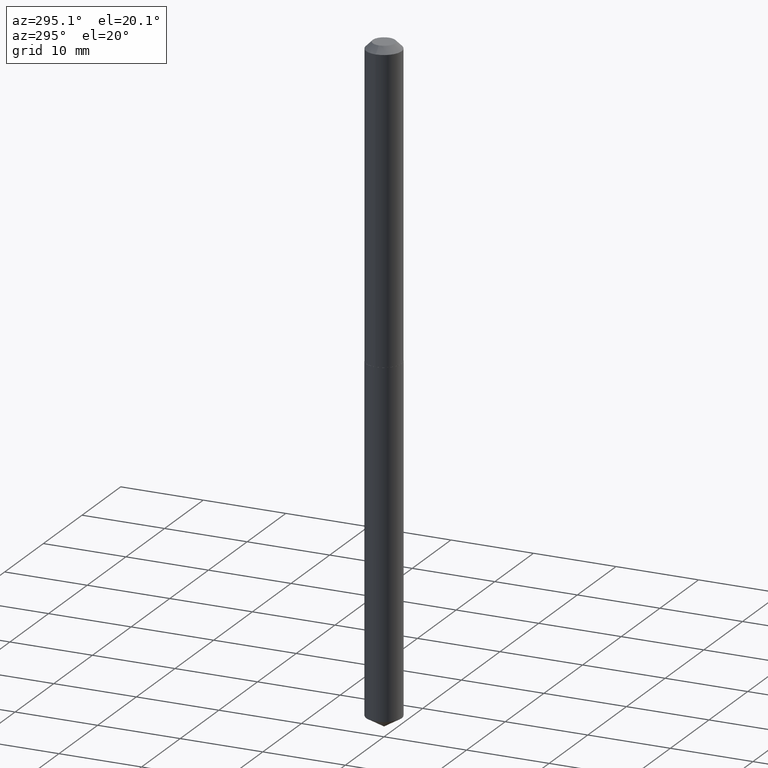
[diagram: clean part render]
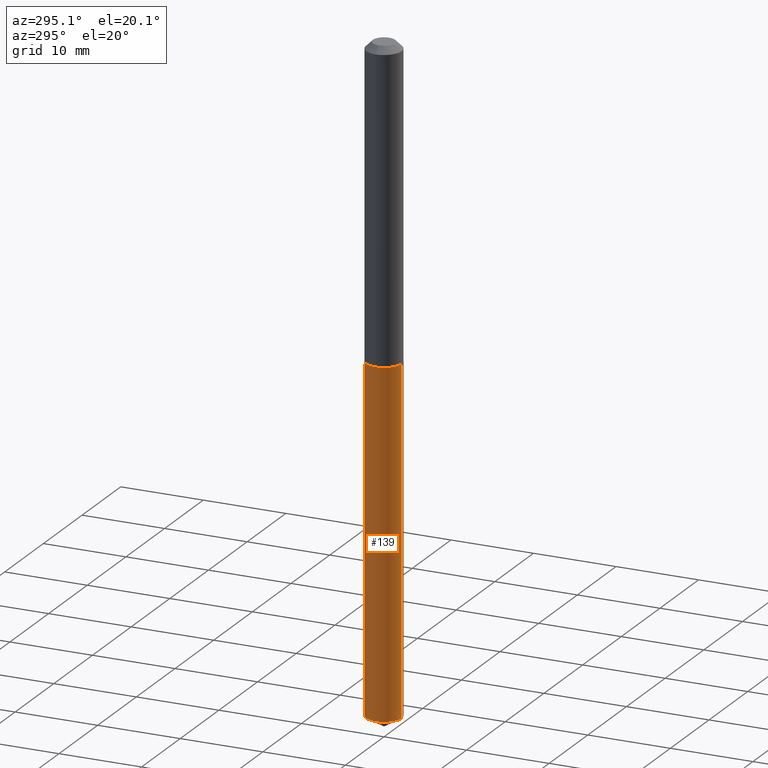
[diagram: same view with one face highlighted and labeled with its STEP entity id]
A machine part, auxiliary view. The second image highlights one B-rep face of the part: STEP entity #139.
In plain terms, the highlighted cylindrical surface (edge-blend (fillet) strip) has radius 2.1501 mm, axis along (-0, 0, 1).
Its self-contained STEP definition (entity closure, byte-faithful):
#8 = VERTEX_POINT ( 'NONE', #281 ) ;
#11 = ORIENTED_EDGE ( 'NONE', *, *, #216, .F. ) ;
#20 = CARTESIAN_POINT ( 'NONE',  ( 6.014744258210007567E-16, 0.08464999999998920610, -3.098737148599317592 ) ) ;
#28 = VECTOR ( 'NONE', #289, 39.37007874015748143 ) ;
#44 = DIRECTION ( 'NONE',  ( -2.445439580246594342E-29, 3.491523192050575097E-15, 1.000000000000000000 ) ) ;
#45 = DIRECTION ( 'NONE',  ( -2.445439580246594342E-29, 3.491523192050574702E-15, 1.000000000000000000 ) ) ;
#46 = FACE_OUTER_BOUND ( 'NONE', #322, .T. ) ;
#47 = DIRECTION ( 'NONE',  ( -6.982962677686265922E-15, -1.000000000000000000, 3.227227399485248397E-15 ) ) ;
#54 = CARTESIAN_POINT ( 'NONE',  ( 6.014744258210009539E-16, 0.08464999999999488212, -1.468500000000000361 ) ) ;
#70 = DIRECTION ( 'NONE',  ( -6.982962677686265922E-15, -1.000000000000000000, 3.227227399485248397E-15 ) ) ;
#71 = CARTESIAN_POINT ( 'NONE',  ( 7.577817390255991065E-29, -1.081925115896807273E-14, -3.098737148599316704 ) ) ;
#74 = AXIS2_PLACEMENT_3D ( 'NONE', #71, #194, #229 ) ;
#75 = CARTESIAN_POINT ( 'NONE',  ( 6.014744258209607220E-16, 0.08464999999999488212, -1.468500000000000361 ) ) ;
#90 = VERTEX_POINT ( 'NONE', #252 ) ;
#107 = AXIS2_PLACEMENT_3D ( 'NONE', #384, #317, #47 ) ;
#116 = EDGE_CURVE ( 'NONE', #8, #90, #195, .T. ) ;
#139 = ADVANCED_FACE ( 'NONE', ( #46 ), #251, .T. ) ;
#150 = EDGE_CURVE ( 'NONE', #193, #292, #225, .T. ) ;
#187 = ORIENTED_EDGE ( 'NONE', *, *, #116, .T. ) ;
#193 = VERTEX_POINT ( 'NONE', #20 ) ;
#194 = DIRECTION ( 'NONE',  ( -2.445439580246594342E-29, 3.491523192050575097E-15, 1.000000000000000000 ) ) ;
#195 = LINE ( 'NONE', #379, #244 ) ;
#200 = AXIS2_PLACEMENT_3D ( 'NONE', #348, #44, #70 ) ;
#210 = ORIENTED_EDGE ( 'NONE', *, *, #150, .F. ) ;
#216 = EDGE_CURVE ( 'NONE', #292, #90, #319, .T. ) ;
#224 = EDGE_CURVE ( 'NONE', #193, #8, #228, .T. ) ;
#225 = LINE ( 'NONE', #75, #28 ) ;
#228 = CIRCLE ( 'NONE', #74, 0.08465000000000001690 ) ;
#229 = DIRECTION ( 'NONE',  ( -6.982962677686265922E-15, -1.000000000000000000, 6.454454798970496795E-15 ) ) ;
#244 = VECTOR ( 'NONE', #45, 39.37007874015748143 ) ;
#251 = CYLINDRICAL_SURFACE ( 'NONE', #107, 0.08465000000000001690 ) ;
#252 = CARTESIAN_POINT ( 'NONE',  ( -5.911077906661066131E-16, -0.08465000000000513780, -1.468499999999999917 ) ) ;
#281 = CARTESIAN_POINT ( 'NONE',  ( -5.911077906660666770E-16, -0.08465000000001084157, -3.098737148599316260 ) ) ;
#289 = DIRECTION ( 'NONE',  ( -2.445439580246594342E-29, 3.491523192050574702E-15, 1.000000000000000000 ) ) ;
#292 = VERTEX_POINT ( 'NONE', #54 ) ;
#299 = ORIENTED_EDGE ( 'NONE', *, *, #224, .T. ) ;
#317 = DIRECTION ( 'NONE',  ( -2.445439580246594342E-29, 3.491523192050575097E-15, 1.000000000000000000 ) ) ;
#319 = CIRCLE ( 'NONE', #200, 0.08465000000000001690 ) ;
#322 = EDGE_LOOP ( 'NONE', ( #210, #299, #187, #11 ) ) ;
#348 = CARTESIAN_POINT ( 'NONE',  ( 3.591170941882873536E-29, -5.127240346091159508E-15, -1.468500000000000139 ) ) ;
#379 = CARTESIAN_POINT ( 'NONE',  ( -5.911077906661066131E-16, -0.08465000000000513780, -1.468499999999999917 ) ) ;
#384 = CARTESIAN_POINT ( 'NONE',  ( 3.591170941882873536E-29, -5.127240346091159508E-15, -1.468500000000000139 ) ) ;